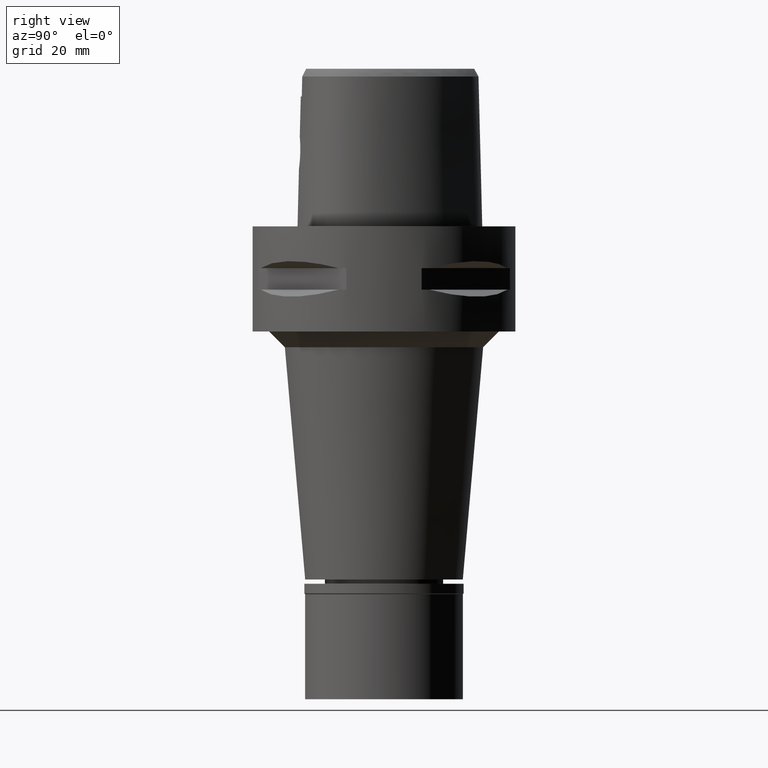
[diagram: clean part render]
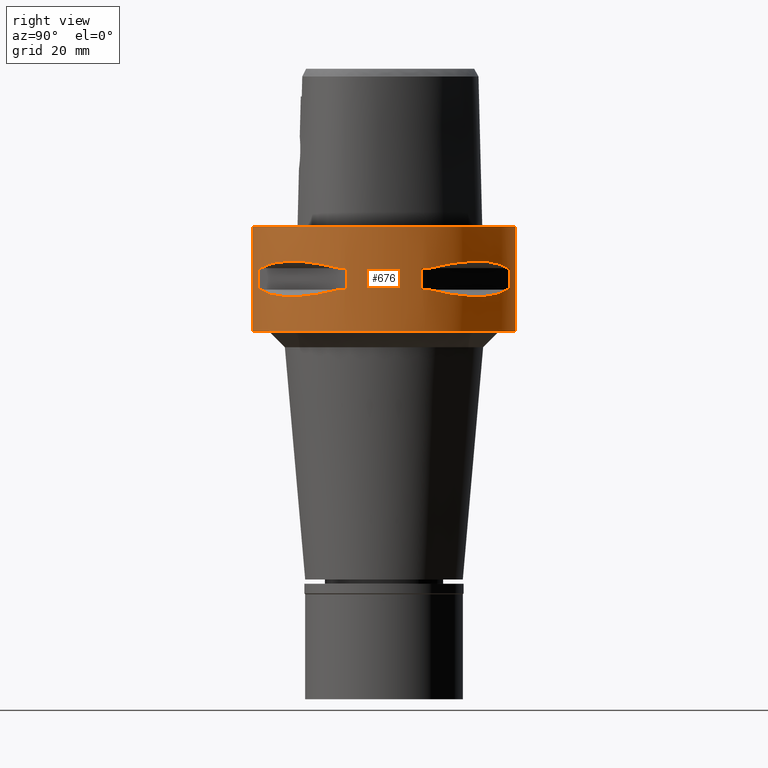
[diagram: same view with one face highlighted and labeled with its STEP entity id]
A machine part, right view. The second image highlights one B-rep face of the part: STEP entity #676.
In plain terms, the highlighted cylindrical surface (partial cylindrical patch) has radius 25 mm, axis along (0, 0, -1).
Its self-contained STEP definition (entity closure, byte-faithful):
#1 = CARTESIAN_POINT ( 'NONE',  ( 13.53433973752400554, -21.01958685664054372, -13.05032380590162333 ) ) ;
#29 = CARTESIAN_POINT ( 'NONE',  ( 13.55971422200820520, -21.00321793043535479, -13.05400030967370206 ) ) ;
#52 = CARTESIAN_POINT ( 'NONE',  ( 12.89853354821786624, -21.41803043592453548, -12.95342092614003349 ) ) ;
#78 = ORIENTED_EDGE ( 'NONE', *, *, #1462, .T. ) ;
#79 = AXIS2_PLACEMENT_3D ( 'NONE', #2359, #2410, #2042 ) ;
#106 = CARTESIAN_POINT ( 'NONE',  ( 13.24197703503267931, -21.20561591939681634, -13.00691327926098495 ) ) ;
#199 = CARTESIAN_POINT ( 'NONE',  ( 22.82438450745431524, 10.36314631860615876, -7.507504930525399800 ) ) ;
#214 = CARTESIAN_POINT ( 'NONE',  ( 16.07509500019029502, 19.18226349638565509, -13.33749867751885532 ) ) ;
#226 = VERTEX_POINT ( 'NONE', #1675 ) ;
#245 = LINE ( 'NONE', #3628, #3901 ) ;
#279 = VECTOR ( 'NONE', #2536, 1000.000000000000000 ) ;
#284 = AXIS2_PLACEMENT_3D ( 'NONE', #4622, #4328, #1259 ) ;
#286 = CARTESIAN_POINT ( 'NONE',  ( 13.60713573003037880, 20.97251445226597966, -13.06082541678103404 ) ) ;
#303 = CARTESIAN_POINT ( 'NONE',  ( 8.646484890751999330, -23.45715880140000209, -7.949999999998999201 ) ) ;
#320 = EDGE_CURVE ( 'NONE', #1537, #763, #1826, .T. ) ;
#330 = ORIENTED_EDGE ( 'NONE', *, *, #2667, .T. ) ;
#338 = DIRECTION ( 'NONE',  ( 0.0000000000000000000, 0.0000000000000000000, -1.000000000000000000 ) ) ;
#362 = DIRECTION ( 'NONE',  ( 0.3458593956303108730, -0.9382863520558295534, 0.0000000000000000000 ) ) ;
#368 = CARTESIAN_POINT ( 'NONE',  ( 0.0000000000000000000, -25.00000000000000000, 0.0000000000000000000 ) ) ;
#376 = CARTESIAN_POINT ( 'NONE',  ( 23.95277699797999915, 7.159921374235000080, -7.950000000000000178 ) ) ;
#381 = CARTESIAN_POINT ( 'NONE',  ( 0.0000000000000000000, -25.00000000000000000, -20.00000000000000000 ) ) ;
#397 = VECTOR ( 'NONE', #782, 1000.000000000000000 ) ;
#426 = ORIENTED_EDGE ( 'NONE', *, *, #3872, .F. ) ;
#452 = CARTESIAN_POINT ( 'NONE',  ( 23.45715880140000209, -8.646484890751999330, -12.05000000000000071 ) ) ;
#465 = CIRCLE ( 'NONE', #1323, 25.00000000000000000 ) ;
#480 = ORIENTED_EDGE ( 'NONE', *, *, #588, .F. ) ;
#483 = DIRECTION ( 'NONE',  ( 0.0000000000000000000, 0.0000000000000000000, -1.000000000000000000 ) ) ;
#504 = CARTESIAN_POINT ( 'NONE',  ( 23.45715880140000209, 8.646484890751999330, -7.949999999998999201 ) ) ;
#520 = CARTESIAN_POINT ( 'NONE',  ( 0.0000000000000000000, 25.00000000000000000, 0.0000000000000000000 ) ) ;
#530 = VERTEX_POINT ( 'NONE', #376 ) ;
#539 = AXIS2_PLACEMENT_3D ( 'NONE', #3618, #1338, #1412 ) ;
#551 = CARTESIAN_POINT ( 'NONE',  ( 23.95277699797999915, -7.159921374230999724, -7.950000000000000178 ) ) ;
#572 = CARTESIAN_POINT ( 'NONE',  ( 8.646484890751999330, 23.45715880140000209, -12.05000000000000071 ) ) ;
#588 = EDGE_CURVE ( 'NONE', #4505, #4385, #3080, .T. ) ;
#593 = CARTESIAN_POINT ( 'NONE',  ( 15.02698525050126044, 20.06074199764951871, -6.733118915116992120 ) ) ;
#609 = DIRECTION ( 'NONE',  ( 0.2863968549694120291, 0.9581110799190402094, 0.0000000000000000000 ) ) ;
#610 = ORIENTED_EDGE ( 'NONE', *, *, #2461, .T. ) ;
#611 = CARTESIAN_POINT ( 'NONE',  ( 21.09754014381971388, 13.41274673326716282, -13.03250796600833716 ) ) ;
#612 = EDGE_CURVE ( 'NONE', #3386, #4147, #4763, .T. ) ;
#615 = DIRECTION ( 'NONE',  ( 0.0000000000000000000, 0.0000000000000000000, 1.000000000000000000 ) ) ;
#616 = CIRCLE ( 'NONE', #4776, 24.99999999999999645 ) ;
#660 = CARTESIAN_POINT ( 'NONE',  ( 23.45715880140000209, 8.646484890756999775, -12.05000000000000071 ) ) ;
#676 = ADVANCED_FACE ( 'NONE', ( #3521, #935, #3131 ), #3853, .T. ) ;
#690 = ORIENTED_EDGE ( 'NONE', *, *, #703, .T. ) ;
#702 = CARTESIAN_POINT ( 'NONE',  ( 0.0000000000000000000, 1.275653338331999844E-14, -12.05000000000000071 ) ) ;
#703 = EDGE_CURVE ( 'NONE', #4355, #4868, #783, .T. ) ;
#763 = VERTEX_POINT ( 'NONE', #551 ) ;
#765 = CARTESIAN_POINT ( 'NONE',  ( 9.515641234297431694, -23.13678124605150188, -12.27403800212630536 ) ) ;
#782 = DIRECTION ( 'NONE',  ( 0.0000000000000000000, 0.0000000000000000000, -1.000000000000000000 ) ) ;
#783 = B_SPLINE_CURVE_WITH_KNOTS ( 'NONE', 3,
 ( #504, #199, #4676, #2002, #3175, #1709, #593, #3198, #4699, #1234 ),
 .UNSPECIFIED., .F., .F.,
 ( 4, 2, 2, 2, 4 ),
 ( 0.0000000000000000000, 0.2500000000000000000, 0.5000000000000000000, 0.7500000000000000000, 1.000000000000000000 ),
 .UNSPECIFIED. ) ;
#786 = DIRECTION ( 'NONE',  ( 0.0000000000000000000, 0.0000000000000000000, 1.000000000000000000 ) ) ;
#815 = CARTESIAN_POINT ( 'NONE',  ( 8.646484890756999775, -23.45715880140000209, -12.05000000000000071 ) ) ;
#896 = DIRECTION ( 'NONE',  ( 0.0000000000000000000, 0.0000000000000000000, -1.000000000000000000 ) ) ;
#924 = AXIS2_PLACEMENT_3D ( 'NONE', #4790, #1420, #609 ) ;
#935 = FACE_BOUND ( 'NONE', #3343, .T. ) ;
#972 = CARTESIAN_POINT ( 'NONE',  ( 12.03062603423778754, 21.99328990739221013, -12.83394786307672675 ) ) ;
#986 = LINE ( 'NONE', #4736, #3350 ) ;
#997 = CIRCLE ( 'NONE', #539, 25.00000000000001066 ) ;
#1022 = CARTESIAN_POINT ( 'NONE',  ( 10.38516041958474645, 22.81626994451295332, -12.49816953211793802 ) ) ;
#1065 = CARTESIAN_POINT ( 'NONE',  ( 23.13678124604550845, 9.515641234313701347, -12.27403800213050111 ) ) ;
#1081 = DIRECTION ( 'NONE',  ( 0.0000000000000000000, 1.000000000000000000, 0.0000000000000000000 ) ) ;
#1099 = CARTESIAN_POINT ( 'NONE',  ( 10.36314631860608593, -22.82438450745432945, -7.507504930525399800 ) ) ;
#1126 = ORIENTED_EDGE ( 'NONE', *, *, #4712, .F. ) ;
#1145 = CARTESIAN_POINT ( 'NONE',  ( 7.159921374230999724, -23.95277699797999915, -7.950000000000000178 ) ) ;
#1154 = CARTESIAN_POINT ( 'NONE',  ( 0.0000000000000000000, 1.275653338331999844E-14, -7.950000000000000178 ) ) ;
#1161 = VECTOR ( 'NONE', #483, 1000.000000000000000 ) ;
#1181 = CARTESIAN_POINT ( 'NONE',  ( 20.95817024473895174, -13.62920640916654591, -13.06397973560678061 ) ) ;
#1206 = CARTESIAN_POINT ( 'NONE',  ( 20.11654071402723432, -14.85488513038430192, -13.22076716108491290 ) ) ;
#1218 = VERTEX_POINT ( 'NONE', #368 ) ;
#1223 = CARTESIAN_POINT ( 'NONE',  ( 23.95277699797999915, 7.159921374230999724, -12.05000000000000071 ) ) ;
#1234 = CARTESIAN_POINT ( 'NONE',  ( 8.646484890751999330, 23.45715880140000209, -7.949999999998999201 ) ) ;
#1243 = VERTEX_POINT ( 'NONE', #3417 ) ;
#1253 = EDGE_CURVE ( 'NONE', #4475, #2144, #4135, .T. ) ;
#1259 = DIRECTION ( 'NONE',  ( 0.0000000000000000000, -1.000000000000000000, 0.0000000000000000000 ) ) ;
#1318 = CIRCLE ( 'NONE', #2420, 25.00000000000001066 ) ;
#1323 = AXIS2_PLACEMENT_3D ( 'NONE', #4482, #2963, #1081 ) ;
#1338 = DIRECTION ( 'NONE',  ( 0.0000000000000000000, 0.0000000000000000000, 1.000000000000000000 ) ) ;
#1341 = ORIENTED_EDGE ( 'NONE', *, *, #1253, .F. ) ;
#1350 = CARTESIAN_POINT ( 'NONE',  ( 14.85488513038957592, 20.11654071401955335, -13.22076716108393413 ) ) ;
#1381 = CARTESIAN_POINT ( 'NONE',  ( 23.95277699797999915, -7.159921374230999724, -12.05000000000000071 ) ) ;
#1392 = CARTESIAN_POINT ( 'NONE',  ( 18.92421359264142211, 16.43106916203626611, -13.37747608848383329 ) ) ;
#1406 = B_SPLINE_CURVE_WITH_KNOTS ( 'NONE', 3,
 ( #660, #1065, #3989, #3626, #2504, #2571, #611, #2876, #4058, #3962, #2204, #1392, #4721, #214, #1350, #3256, #2854, #2132, #4792, #4347, #286, #972, #1022, #2547 ),
 .UNSPECIFIED., .F., .F.,
 ( 4, 1, 1, 1, 1, 1, 2, 2, 2, 1, 1, 1, 1, 1, 2, 2, 4 ),
 ( 0.0000000000000000000, 0.1249999999999982236, 0.1874999999999974465, 0.2187499999999970302, 0.2343749999999969469, 0.2421874999999968081, 0.2460937499999968359, 0.2499999999999968914, 0.4999999999999973355, 0.6249999999999973355, 0.6874999999999976685, 0.7187499999999978906, 0.7343749999999980016, 0.7421874999999980016, 0.7460937499999978906, 0.7499999999999978906, 1.000000000000000000 ),
 .UNSPECIFIED. ) ;
#1412 = DIRECTION ( 'NONE',  ( 0.9382863520558295534, -0.3458593956303108730, 0.0000000000000000000 ) ) ;
#1420 = DIRECTION ( 'NONE',  ( 0.0000000000000000000, 0.0000000000000000000, -1.000000000000000000 ) ) ;
#1439 = DIRECTION ( 'NONE',  ( 0.0000000000000000000, 0.0000000000000000000, 1.000000000000000000 ) ) ;
#1462 = EDGE_CURVE ( 'NONE', #1218, #2320, #986, .T. ) ;
#1469 = CARTESIAN_POINT ( 'NONE',  ( 0.0000000000000000000, 1.275653338331999844E-14, -12.05000000000000071 ) ) ;
#1480 = CARTESIAN_POINT ( 'NONE',  ( 8.646484890751999330, -23.45715880140000209, -7.949999999998999201 ) ) ;
#1535 = CARTESIAN_POINT ( 'NONE',  ( 23.45715880140000209, -8.646484890751999330, -12.05000000000000071 ) ) ;
#1537 = VERTEX_POINT ( 'NONE', #3637 ) ;
#1538 = CARTESIAN_POINT ( 'NONE',  ( 18.30096971348435630, -17.05439749817190176, -13.37751056790094850 ) ) ;
#1565 = CARTESIAN_POINT ( 'NONE',  ( 21.99328990740119139, -12.03062603421341770, -12.83394786307044022 ) ) ;
#1671 = VERTEX_POINT ( 'NONE', #2145 ) ;
#1675 = CARTESIAN_POINT ( 'NONE',  ( 23.45715880140000209, 8.646484890756999775, -12.05000000000000071 ) ) ;
#1680 = VERTEX_POINT ( 'NONE', #4428 ) ;
#1709 = CARTESIAN_POINT ( 'NONE',  ( 16.42437865151178045, 18.93096040781560063, -6.622496303226939496 ) ) ;
#1761 = EDGE_CURVE ( 'NONE', #4475, #3066, #4858, .T. ) ;
#1777 = ORIENTED_EDGE ( 'NONE', *, *, #2907, .F. ) ;
#1782 = CIRCLE ( 'NONE', #4531, 25.00000000000001066 ) ;
#1805 = CIRCLE ( 'NONE', #79, 25.00000000000000000 ) ;
#1826 = LINE ( 'NONE', #1381, #279 ) ;
#1848 = EDGE_CURVE ( 'NONE', #4505, #1680, #1782, .T. ) ;
#1856 = EDGE_CURVE ( 'NONE', #226, #4024, #1318, .T. ) ;
#1872 = CARTESIAN_POINT ( 'NONE',  ( 22.00752022556849496, -11.99636231264437214, -7.175618606703327629 ) ) ;
#1934 = CARTESIAN_POINT ( 'NONE',  ( 7.159921374230999724, 23.95277699797999915, -7.950000000000000178 ) ) ;
#2002 = CARTESIAN_POINT ( 'NONE',  ( 20.06077645874710313, 15.02693924547574866, -6.733132781305681824 ) ) ;
#2006 = LINE ( 'NONE', #3092, #1161 ) ;
#2034 = EDGE_CURVE ( 'NONE', #1671, #763, #997, .T. ) ;
#2042 = DIRECTION ( 'NONE',  ( 0.0000000000000000000, -1.000000000000000000, 0.0000000000000000000 ) ) ;
#2102 = ORIENTED_EDGE ( 'NONE', *, *, #320, .F. ) ;
#2110 = DIRECTION ( 'NONE',  ( 0.9581110799190402094, 0.2863968549694120291, 0.0000000000000000000 ) ) ;
#2132 = CARTESIAN_POINT ( 'NONE',  ( 13.74471461761685198, 20.88268233906084248, -13.08031795579737455 ) ) ;
#2141 = EDGE_CURVE ( 'NONE', #4868, #2144, #4301, .T. ) ;
#2142 = EDGE_LOOP ( 'NONE', ( #4630, #78, #3139, #2472 ) ) ;
#2144 = VERTEX_POINT ( 'NONE', #1934 ) ;
#2145 = CARTESIAN_POINT ( 'NONE',  ( 23.45715880140000209, -8.646484890751999330, -7.949999999998999201 ) ) ;
#2166 = CARTESIAN_POINT ( 'NONE',  ( 0.0000000000000000000, 1.275653338331999844E-14, -7.950000000000000178 ) ) ;
#2175 = AXIS2_PLACEMENT_3D ( 'NONE', #2166, #1439, #4072 ) ;
#2201 = DIRECTION ( 'NONE',  ( 0.0000000000000000000, 0.0000000000000000000, -1.000000000000000000 ) ) ;
#2204 = CARTESIAN_POINT ( 'NONE',  ( 20.02826730452214932, 15.06560254769159712, -13.27075471794772277 ) ) ;
#2217 = EDGE_CURVE ( 'NONE', #3461, #1218, #465, .T. ) ;
#2243 = CARTESIAN_POINT ( 'NONE',  ( 20.56020460723486565, -14.22535762328174691, -13.14488865845287080 ) ) ;
#2320 = VERTEX_POINT ( 'NONE', #381 ) ;
#2344 = CARTESIAN_POINT ( 'NONE',  ( 13.48572973711064193, -21.05082155772163688, -13.04323036965292637 ) ) ;
#2359 = CARTESIAN_POINT ( 'NONE',  ( 0.0000000000000000000, 1.275653338331999844E-14, -20.00000000000000000 ) ) ;
#2410 = DIRECTION ( 'NONE',  ( 0.0000000000000000000, 0.0000000000000000000, 1.000000000000000000 ) ) ;
#2420 = AXIS2_PLACEMENT_3D ( 'NONE', #1469, #2201, #4463 ) ;
#2451 = DIRECTION ( 'NONE',  ( 0.0000000000000000000, 0.0000000000000000000, -1.000000000000000000 ) ) ;
#2461 = EDGE_CURVE ( 'NONE', #1537, #4385, #616, .T. ) ;
#2472 = ORIENTED_EDGE ( 'NONE', *, *, #2479, .F. ) ;
#2479 = EDGE_CURVE ( 'NONE', #3461, #1243, #2006, .T. ) ;
#2504 = CARTESIAN_POINT ( 'NONE',  ( 21.41803043591995959, 12.89853354823032738, -12.95342092614324869 ) ) ;
#2536 = DIRECTION ( 'NONE',  ( 0.0000000000000000000, 0.0000000000000000000, 1.000000000000000000 ) ) ;
#2547 = CARTESIAN_POINT ( 'NONE',  ( 8.646484890751999330, 23.45715880140000209, -12.05000000000000071 ) ) ;
#2555 = CARTESIAN_POINT ( 'NONE',  ( 11.99631184311069099, -22.00754773658079344, -7.175632472892015556 ) ) ;
#2571 = CARTESIAN_POINT ( 'NONE',  ( 21.20561591939435786, 13.24197703503935486, -13.00691327926270446 ) ) ;
#2607 = CARTESIAN_POINT ( 'NONE',  ( 7.159921374230999724, 23.95277699797999915, -12.05000000000000071 ) ) ;
#2634 = CARTESIAN_POINT ( 'NONE',  ( 16.43106916202457057, -18.92421359264944769, -13.37747608848233760 ) ) ;
#2667 = EDGE_CURVE ( 'NONE', #4147, #1671, #4764, .T. ) ;
#2686 = CARTESIAN_POINT ( 'NONE',  ( 12.20403021317722292, -21.82791133048418786, -12.83722430138600323 ) ) ;
#2708 = CARTESIAN_POINT ( 'NONE',  ( 22.81626994452193458, -10.38516041956038727, -12.49816953211166037 ) ) ;
#2743 = CIRCLE ( 'NONE', #3137, 24.99999999999999645 ) ;
#2790 = CARTESIAN_POINT ( 'NONE',  ( 0.0000000000000000000, 1.275653338331999844E-14, -12.05000000000000071 ) ) ;
#2854 = CARTESIAN_POINT ( 'NONE',  ( 13.90573822668135406, 20.77616787493428774, -13.10257122103294058 ) ) ;
#2866 = ORIENTED_EDGE ( 'NONE', *, *, #2034, .T. ) ;
#2876 = CARTESIAN_POINT ( 'NONE',  ( 21.05082155772089436, 13.48572973711263323, -13.04323036965343618 ) ) ;
#2907 = EDGE_CURVE ( 'NONE', #530, #4024, #245, .T. ) ;
#2915 = ORIENTED_EDGE ( 'NONE', *, *, #612, .T. ) ;
#2963 = DIRECTION ( 'NONE',  ( 0.0000000000000000000, 0.0000000000000000000, -1.000000000000000000 ) ) ;
#3033 = CARTESIAN_POINT ( 'NONE',  ( 19.18226349639588690, -16.07509500018327131, -13.33749867752016449 ) ) ;
#3061 = CARTESIAN_POINT ( 'NONE',  ( 8.646484890751999330, 23.45715880140000209, -7.949999999998999201 ) ) ;
#3066 = VERTEX_POINT ( 'NONE', #572 ) ;
#3080 = B_SPLINE_CURVE_WITH_KNOTS ( 'NONE', 3,
 ( #815, #765, #3398, #2686, #52, #106, #3736, #2344, #1, #29, #4575, #2634, #1538, #3033, #1206, #2243, #4499, #3422, #3780, #1181, #4095, #1565, #2708, #452 ),
 .UNSPECIFIED., .F., .F.,
 ( 4, 1, 1, 1, 1, 1, 2, 2, 2, 1, 1, 1, 1, 1, 2, 2, 4 ),
 ( 0.0000000000000000000, 0.1250000000000068834, 0.1875000000000101308, 0.2187500000000117406, 0.2343750000000125733, 0.2421875000000129341, 0.2460937500000130174, 0.2500000000000131006, 0.5000000000000111022, 0.6250000000000101030, 0.6875000000000099920, 0.7187500000000099920, 0.7343750000000099920, 0.7421875000000098810, 0.7460937500000098810, 0.7500000000000098810, 1.000000000000000000 ),
 .UNSPECIFIED. ) ;
#3092 = CARTESIAN_POINT ( 'NONE',  ( 0.0000000000000000000, 25.00000000000000000, 0.0000000000000000000 ) ) ;
#3093 = EDGE_CURVE ( 'NONE', #530, #4355, #2743, .T. ) ;
#3128 = VECTOR ( 'NONE', #786, 1000.000000000000000 ) ;
#3131 = FACE_BOUND ( 'NONE', #4153, .T. ) ;
#3137 = AXIS2_PLACEMENT_3D ( 'NONE', #4350, #615, #2110 ) ;
#3139 = ORIENTED_EDGE ( 'NONE', *, *, #4087, .T. ) ;
#3175 = CARTESIAN_POINT ( 'NONE',  ( 18.93096040781554024, 16.42437865151185505, -6.622505547253058289 ) ) ;
#3189 = AXIS2_PLACEMENT_3D ( 'NONE', #1154, #4195, #4116 ) ;
#3198 = CARTESIAN_POINT ( 'NONE',  ( 11.99636231264435615, 22.00752022556853404, -7.175618606703327629 ) ) ;
#3203 = ORIENTED_EDGE ( 'NONE', *, *, #1856, .T. ) ;
#3256 = CARTESIAN_POINT ( 'NONE',  ( 14.22535762328483067, 20.56020460723039278, -13.14488865845230592 ) ) ;
#3314 = CARTESIAN_POINT ( 'NONE',  ( 20.06074199764950095, -15.02698525050125156, -6.733118915116992120 ) ) ;
#3343 = EDGE_LOOP ( 'NONE', ( #2866, #2102, #610, #480, #4734, #1126, #2915, #330 ) ) ;
#3350 = VECTOR ( 'NONE', #2451, 1000.000000000000000 ) ;
#3367 = CARTESIAN_POINT ( 'NONE',  ( 22.82437128822188654, -10.36318218122986856, -7.507495686399606960 ) ) ;
#3386 = VERTEX_POINT ( 'NONE', #4569 ) ;
#3398 = CARTESIAN_POINT ( 'NONE',  ( 10.78455809745186755, -22.58788056562029922, -12.56798337782941566 ) ) ;
#3417 = CARTESIAN_POINT ( 'NONE',  ( 0.0000000000000000000, 25.00000000000000000, -20.00000000000000000 ) ) ;
#3422 = CARTESIAN_POINT ( 'NONE',  ( 20.88268233906207172, -13.74471461761599400, -13.08031795579753087 ) ) ;
#3461 = VERTEX_POINT ( 'NONE', #520 ) ;
#3521 = FACE_OUTER_BOUND ( 'NONE', #2142, .T. ) ;
#3535 = ORIENTED_EDGE ( 'NONE', *, *, #1761, .T. ) ;
#3606 = CARTESIAN_POINT ( 'NONE',  ( 8.646484890756999775, -23.45715880140000209, -12.05000000000000071 ) ) ;
#3618 = CARTESIAN_POINT ( 'NONE',  ( 0.0000000000000000000, 1.275653338331999844E-14, -7.950000000000000178 ) ) ;
#3626 = CARTESIAN_POINT ( 'NONE',  ( 21.82791133047632215, 12.20403021319857828, -12.83722430139150994 ) ) ;
#3628 = CARTESIAN_POINT ( 'NONE',  ( 23.95277699797999915, 7.159921374230999724, -7.950000000000000178 ) ) ;
#3637 = CARTESIAN_POINT ( 'NONE',  ( 23.95277699797999915, -7.159921374235000080, -12.05000000000000071 ) ) ;
#3736 = CARTESIAN_POINT ( 'NONE',  ( 13.41274673326371314, -21.09754014382099285, -13.03250796600744721 ) ) ;
#3780 = CARTESIAN_POINT ( 'NONE',  ( 20.92801700160322298, -13.67544437571097404, -13.07054629644096444 ) ) ;
#3853 = CYLINDRICAL_SURFACE ( 'NONE', #284, 25.00000000000000000 ) ;
#3872 = EDGE_CURVE ( 'NONE', #226, #3066, #1406, .T. ) ;
#3881 = ORIENTED_EDGE ( 'NONE', *, *, #2141, .T. ) ;
#3901 = VECTOR ( 'NONE', #3946, 1000.000000000000000 ) ;
#3946 = DIRECTION ( 'NONE',  ( 0.0000000000000000000, 0.0000000000000000000, -1.000000000000000000 ) ) ;
#3954 = ORIENTED_EDGE ( 'NONE', *, *, #3093, .T. ) ;
#3962 = CARTESIAN_POINT ( 'NONE',  ( 21.00321793043583796, 13.55971422200765630, -13.05400030967367897 ) ) ;
#3989 = CARTESIAN_POINT ( 'NONE',  ( 22.58788056560981516, 10.78455809748034788, -12.56798337783676267 ) ) ;
#4024 = VERTEX_POINT ( 'NONE', #1223 ) ;
#4039 = CARTESIAN_POINT ( 'NONE',  ( 16.42437865151175558, -18.93096040781560774, -6.622505547253058289 ) ) ;
#4058 = CARTESIAN_POINT ( 'NONE',  ( 21.01958685664017068, 13.53433973752500918, -13.05032380590188446 ) ) ;
#4072 = DIRECTION ( 'NONE',  ( 0.3458593956303108730, 0.9382863520558295534, 0.0000000000000000000 ) ) ;
#4087 = EDGE_CURVE ( 'NONE', #2320, #1243, #1805, .T. ) ;
#4092 = CARTESIAN_POINT ( 'NONE',  ( 18.93096040781557221, -16.42437865151179466, -6.622496303226939496 ) ) ;
#4095 = CARTESIAN_POINT ( 'NONE',  ( 20.97251445226583755, -13.60713573003076071, -13.06082541678112641 ) ) ;
#4111 = CARTESIAN_POINT ( 'NONE',  ( 23.45715880140000209, 8.646484890751999330, -7.949999999998999201 ) ) ;
#4112 = CARTESIAN_POINT ( 'NONE',  ( 15.02693924547570070, -20.06077645874711379, -6.733132781305681824 ) ) ;
#4116 = DIRECTION ( 'NONE',  ( 0.2863968549694120291, -0.9581110799190402094, 0.0000000000000000000 ) ) ;
#4135 = LINE ( 'NONE', #2607, #3128 ) ;
#4147 = VERTEX_POINT ( 'NONE', #303 ) ;
#4153 = EDGE_LOOP ( 'NONE', ( #3881, #1341, #3535, #426, #3203, #1777, #3954, #690 ) ) ;
#4176 = DIRECTION ( 'NONE',  ( 0.9581110799190402094, -0.2863968549694120291, 0.0000000000000000000 ) ) ;
#4195 = DIRECTION ( 'NONE',  ( 0.0000000000000000000, 0.0000000000000000000, 1.000000000000000000 ) ) ;
#4301 = CIRCLE ( 'NONE', #2175, 25.00000000000001066 ) ;
#4328 = DIRECTION ( 'NONE',  ( 0.0000000000000000000, 0.0000000000000000000, -1.000000000000000000 ) ) ;
#4347 = CARTESIAN_POINT ( 'NONE',  ( 13.62920640916679993, 20.95817024473859291, -13.06397973560673265 ) ) ;
#4350 = CARTESIAN_POINT ( 'NONE',  ( 0.0000000000000000000, 1.275653338331999844E-14, -7.950000000000000178 ) ) ;
#4355 = VERTEX_POINT ( 'NONE', #4111 ) ;
#4385 = VERTEX_POINT ( 'NONE', #1535 ) ;
#4428 = CARTESIAN_POINT ( 'NONE',  ( 7.159921374230999724, -23.95277699797999915, -12.05000000000000071 ) ) ;
#4463 = DIRECTION ( 'NONE',  ( 0.9382863520558295534, 0.3458593956303108730, 0.0000000000000000000 ) ) ;
#4475 = VERTEX_POINT ( 'NONE', #4849 ) ;
#4482 = CARTESIAN_POINT ( 'NONE',  ( 0.0000000000000000000, 1.275653338331999844E-14, 0.0000000000000000000 ) ) ;
#4498 = CARTESIAN_POINT ( 'NONE',  ( 23.45715880140000209, -8.646484890751999330, -7.949999999998999201 ) ) ;
#4499 = CARTESIAN_POINT ( 'NONE',  ( 20.77616787493668937, -13.90573822667970916, -13.10257122103325145 ) ) ;
#4505 = VERTEX_POINT ( 'NONE', #3606 ) ;
#4516 = LINE ( 'NONE', #1145, #397 ) ;
#4531 = AXIS2_PLACEMENT_3D ( 'NONE', #702, #338, #362 ) ;
#4569 = CARTESIAN_POINT ( 'NONE',  ( 7.159921374235000080, -23.95277699797999915, -7.950000000000000178 ) ) ;
#4575 = CARTESIAN_POINT ( 'NONE',  ( 15.06560254765663132, -20.02826730455345583, -13.27075471794622885 ) ) ;
#4622 = CARTESIAN_POINT ( 'NONE',  ( 0.0000000000000000000, 1.275653338331999844E-14, 4.165000000000000036 ) ) ;
#4630 = ORIENTED_EDGE ( 'NONE', *, *, #2217, .T. ) ;
#4676 = CARTESIAN_POINT ( 'NONE',  ( 22.00754773658079344, 11.99631184311074428, -7.175632472892015556 ) ) ;
#4699 = CARTESIAN_POINT ( 'NONE',  ( 10.36318218122983481, 22.82437128822192207, -7.507495686399606960 ) ) ;
#4712 = EDGE_CURVE ( 'NONE', #3386, #1680, #4516, .T. ) ;
#4721 = CARTESIAN_POINT ( 'NONE',  ( 17.05439749817592343, 18.30096971347850499, -13.37751056790020598 ) ) ;
#4734 = ORIENTED_EDGE ( 'NONE', *, *, #1848, .T. ) ;
#4736 = CARTESIAN_POINT ( 'NONE',  ( 0.0000000000000000000, -25.00000000000000000, 0.0000000000000000000 ) ) ;
#4763 = CIRCLE ( 'NONE', #3189, 24.99999999999999645 ) ;
#4764 = B_SPLINE_CURVE_WITH_KNOTS ( 'NONE', 3,
 ( #1480, #1099, #2555, #4112, #4039, #4092, #3314, #1872, #3367, #4498 ),
 .UNSPECIFIED., .F., .F.,
 ( 4, 2, 2, 2, 4 ),
 ( 0.0000000000000000000, 0.2500000000000000000, 0.5000000000000000000, 0.7500000000000000000, 1.000000000000000000 ),
 .UNSPECIFIED. ) ;
#4776 = AXIS2_PLACEMENT_3D ( 'NONE', #2790, #896, #4176 ) ;
#4790 = CARTESIAN_POINT ( 'NONE',  ( 0.0000000000000000000, 1.275653338331999844E-14, -12.05000000000000071 ) ) ;
#4792 = CARTESIAN_POINT ( 'NONE',  ( 13.67544437571146609, 20.92801700160250533, -13.07054629644086674 ) ) ;
#4849 = CARTESIAN_POINT ( 'NONE',  ( 7.159921374235000080, 23.95277699797999915, -12.05000000000000071 ) ) ;
#4858 = CIRCLE ( 'NONE', #924, 24.99999999999999645 ) ;
#4868 = VERTEX_POINT ( 'NONE', #3061 ) ;